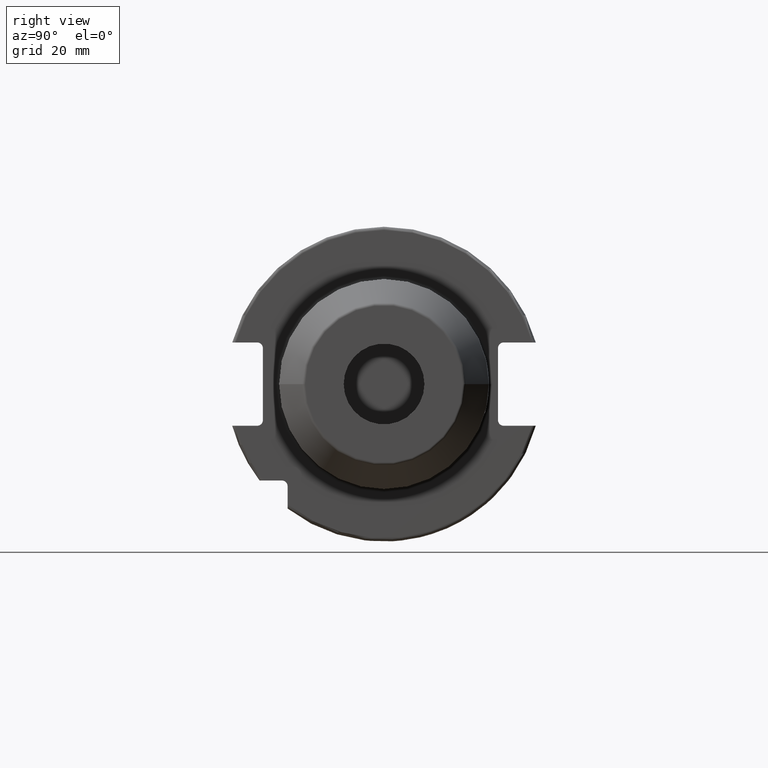
[diagram: clean part render]
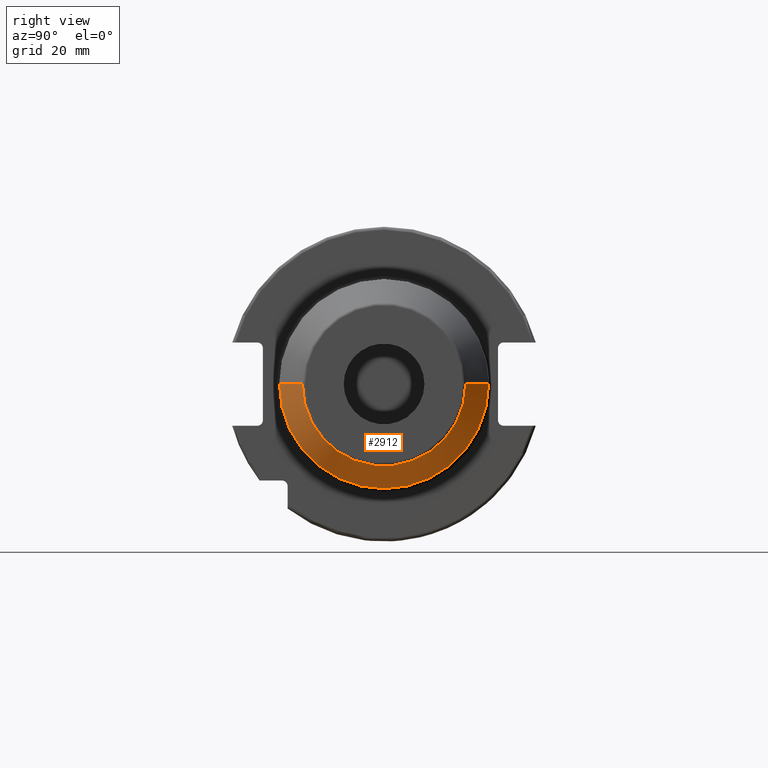
[diagram: same view with one face highlighted and labeled with its STEP entity id]
A machine part, right view. The second image highlights one B-rep face of the part: STEP entity #2912.
In plain terms, the highlighted conical surface has half-angle 30 deg.
Its self-contained STEP definition (entity closure, byte-faithful):
#1122=CARTESIAN_POINT('',(6.723205080757E1,0.E0,0.E0));
#1123=DIRECTION('',(-1.E0,0.E0,0.E0));
#1124=DIRECTION('',(0.E0,1.E0,0.E0));
#1125=AXIS2_PLACEMENT_3D('',#1122,#1123,#1124);
#1127=DIRECTION('',(-8.660254037844E-1,-5.E-1,1.650580073059E-13));
#1128=VECTOR('',#1127,1.416580753731E1);
#1129=CARTESIAN_POINT('',(7.95E1,-2.528312163513E1,7.700668800769E-13));
#1130=LINE('',#1129,#1128);
#1131=CARTESIAN_POINT('',(7.95E1,0.E0,0.E0));
#1132=DIRECTION('',(-1.E0,0.E0,0.E0));
#1133=DIRECTION('',(0.E0,1.E0,0.E0));
#1134=AXIS2_PLACEMENT_3D('',#1131,#1132,#1133);
#1136=DIRECTION('',(-8.660254037844E-1,5.E-1,-1.661548688216E-13));
#1137=VECTOR('',#1136,1.416580753731E1);
#1138=CARTESIAN_POINT('',(7.95E1,2.528312163513E1,-7.708548302143E-13));
#1139=LINE('',#1138,#1137);
#1751=CARTESIAN_POINT('',(6.723205080757E1,3.236602540378E1,0.E0));
#1752=CARTESIAN_POINT('',(6.723205080757E1,-3.236602540378E1,0.E0));
#1753=VERTEX_POINT('',#1751);
#1754=VERTEX_POINT('',#1752);
#1755=CARTESIAN_POINT('',(7.95E1,2.528312163513E1,0.E0));
#1756=CARTESIAN_POINT('',(7.95E1,-2.528312163513E1,0.E0));
#1757=VERTEX_POINT('',#1755);
#1758=VERTEX_POINT('',#1756);
#2900=CARTESIAN_POINT('',(7.336602540378E1,0.E0,0.E0));
#2901=DIRECTION('',(-1.E0,0.E0,0.E0));
#2902=DIRECTION('',(0.E0,1.E0,0.E0));
#2903=AXIS2_PLACEMENT_3D('',#2900,#2901,#2902);
#2904=CONICAL_SURFACE('',#2903,2.882457351946E1,3.E1);
#2905=ORIENTED_EDGE('',*,*,#2865,.T.);
#2906=ORIENTED_EDGE('',*,*,#2895,.F.);
#2908=ORIENTED_EDGE('',*,*,#2907,.F.);
#2909=ORIENTED_EDGE('',*,*,#2891,.T.);
#2910=EDGE_LOOP('',(#2905,#2906,#2908,#2909));
#2911=FACE_OUTER_BOUND('',#2910,.F.);
#2912=ADVANCED_FACE('',(#2911),#2904,.T.);
#1126=CIRCLE('',#1125,3.236602540378E1);
#1135=CIRCLE('',#1134,2.528312163513E1);
#2865=EDGE_CURVE('',#1753,#1754,#1126,.T.);
#2891=EDGE_CURVE('',#1757,#1753,#1139,.T.);
#2895=EDGE_CURVE('',#1758,#1754,#1130,.T.);
#2907=EDGE_CURVE('',#1757,#1758,#1135,.T.);